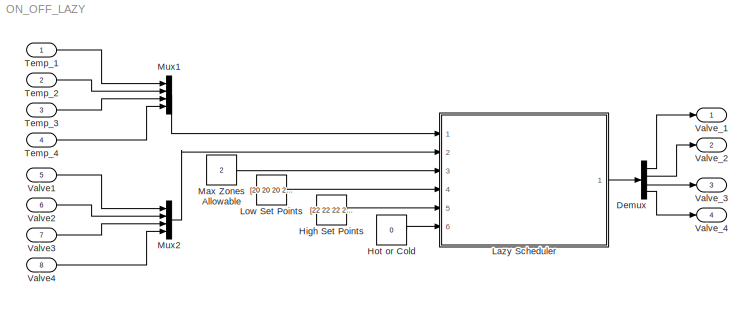
MODEL ON_OFF_LAZY
KIND model
BLOCK [Demux] Demux
  DisplayOption = bar
  Ports = [1, 4]
  SID = 22
BLOCK [Constant] High Set Points
  SID = 30
  Value = [22 22 22 22]
BLOCK [Constant] Hot or Cold
  SID = 31
  Value = 0
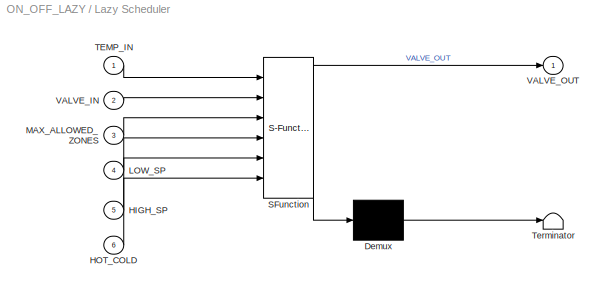
BLOCK [SubSystem] Lazy Scheduler
  ErrorFcn = Stateflow.Translate.translate
  FunctionWithSeparateData = off
  MaskDescription = Embedded MATLAB block
  MaskDisplay = bgColor = Simulink.Root.ColorString2Rgb(get_param(gcbh, 'BackgroundColor')); image(imread('private/eml_membrane_16.png','png','BackgroundColor',bgColor(1:3)),'center'); disp([10 10 'fcn']);
  MaskHideContents = off
  MaskIconFrame = on
  MaskIconOpaque = off
  MaskIconRotate = none
  MaskIconUnits = normalized
  MaskPortRotate = default
  MaskSelfModifiable = on
  MaskType = Stateflow
  MinAlgLoopOccurrences = off
  Opaque = off
  PermitHierarchicalResolution = ExplicitOnly
  Ports = [6, 1]
  PropExecContextOutsideSubsystem = off
  RTWSystemCode = Auto
  RequestExecContextInheritance = off
  SID = 19
  TreatAsAtomicUnit = on
BLOCK [Demux] Lazy Scheduler/ Demux 
  Outputs = 1
  Ports = [1, 1]
  SID = 19::15
BLOCK [S-Function] Lazy Scheduler/ SFunction 
  EnableBusSupport = on
  FunctionName = sf_sfun
  PortCounts = [6 2]
  Ports = [6, 2]
  SID = 19::14
  Tag = Stateflow S-Function ON_OFF_LAZY 2
BLOCK [Terminator] Lazy Scheduler/ Terminator 
  SID = 19::17
BLOCK [Inport] Lazy Scheduler/HIGH_SP
  IconDisplay = Port number
  Port = 5
  SID = 19::21
BLOCK [Inport] Lazy Scheduler/HOT_COLD
  IconDisplay = Port number
  Port = 6
  SID = 19::24
BLOCK [Inport] Lazy Scheduler/LOW_SP
  IconDisplay = Port number
  Port = 4
  SID = 19::20
BLOCK [Inport] Lazy Scheduler/MAX_ALLOWED_ZONES
  IconDisplay = Port number
  Port = 3
  SID = 19::18
BLOCK [Inport] Lazy Scheduler/TEMP_IN
  IconDisplay = Port number
  SID = 19::1
BLOCK [Inport] Lazy Scheduler/VALVE_IN
  IconDisplay = Port number
  Port = 2
  SID = 19::22
BLOCK [Outport] Lazy Scheduler/VALVE_OUT
  IconDisplay = Port number
  SID = 19::23
BLOCK [Constant] Low Set Points
  SID = 29
  Value = [20 20 20 20]
BLOCK [Constant] Max Zones Allowable
  SID = 28
  Value = 2
BLOCK [Mux] Mux1
  DisplayOption = bar
  Ports = [4, 1]
  SID = 21
BLOCK [Mux] Mux2
  DisplayOption = bar
  Ports = [4, 1]
  SID = 27
BLOCK [Inport] Temp_1
  IconDisplay = Port number
  SID = 5
BLOCK [Inport] Temp_2
  IconDisplay = Port number
  Port = 2
  SID = 10
BLOCK [Inport] Temp_3
  IconDisplay = Port number
  Port = 3
  SID = 13
BLOCK [Inport] Temp_4
  IconDisplay = Port number
  Port = 4
  SID = 16
BLOCK [Inport] Valve1
  IconDisplay = Port number
  Port = 5
  SID = 23
BLOCK [Inport] Valve2
  IconDisplay = Port number
  Port = 6
  SID = 24
BLOCK [Inport] Valve3
  IconDisplay = Port number
  Port = 7
  SID = 25
BLOCK [Inport] Valve4
  IconDisplay = Port number
  Port = 8
  SID = 26
BLOCK [Outport] Valve_1
  IconDisplay = Port number
  SID = 6
BLOCK [Outport] Valve_2
  IconDisplay = Port number
  Port = 2
  SID = 12
BLOCK [Outport] Valve_3
  IconDisplay = Port number
  Port = 3
  SID = 15
BLOCK [Outport] Valve_4
  IconDisplay = Port number
  Port = 4
  SID = 18
LINE Demux:1 -> Valve_1:1
LINE Demux:2 -> Valve_2:1
LINE Demux:3 -> Valve_3:1
LINE Demux:4 -> Valve_4:1
LINE High Set Points:1 -> Lazy Scheduler:5
LINE Hot or Cold:1 -> Lazy Scheduler:6
LINE Lazy Scheduler/ Demux :1 -> Lazy Scheduler/ Terminator :1
LINE Lazy Scheduler/ SFunction :1 -> Lazy Scheduler/ Demux :1
LINE Lazy Scheduler/ SFunction :2 -> Lazy Scheduler/VALVE_OUT:1
LINE Lazy Scheduler/HIGH_SP:1 -> Lazy Scheduler/ SFunction :5
LINE Lazy Scheduler/HOT_COLD:1 -> Lazy Scheduler/ SFunction :6
LINE Lazy Scheduler/LOW_SP:1 -> Lazy Scheduler/ SFunction :4
LINE Lazy Scheduler/MAX_ALLOWED_ZONES:1 -> Lazy Scheduler/ SFunction :3
LINE Lazy Scheduler/TEMP_IN:1 -> Lazy Scheduler/ SFunction :1
LINE Lazy Scheduler/VALVE_IN:1 -> Lazy Scheduler/ SFunction :2
LINE Lazy Scheduler:1 -> Demux:1
LINE Low Set Points:1 -> Lazy Scheduler:4
LINE Max Zones Allowable:1 -> Lazy Scheduler:3
LINE Mux1:1 -> Lazy Scheduler:1
LINE Mux2:1 -> Lazy Scheduler:2
LINE Temp_1:1 -> Mux1:1
LINE Temp_2:1 -> Mux1:2
LINE Temp_3:1 -> Mux1:3
LINE Temp_4:1 -> Mux1:4
LINE Valve1:1 -> Mux2:1
LINE Valve2:1 -> Mux2:2
LINE Valve3:1 -> Mux2:3
LINE Valve4:1 -> Mux2:4
CHART Lazy Scheduler states=1 transitions=1
  STATE_LABEL 'eML_blk_kernel()'
